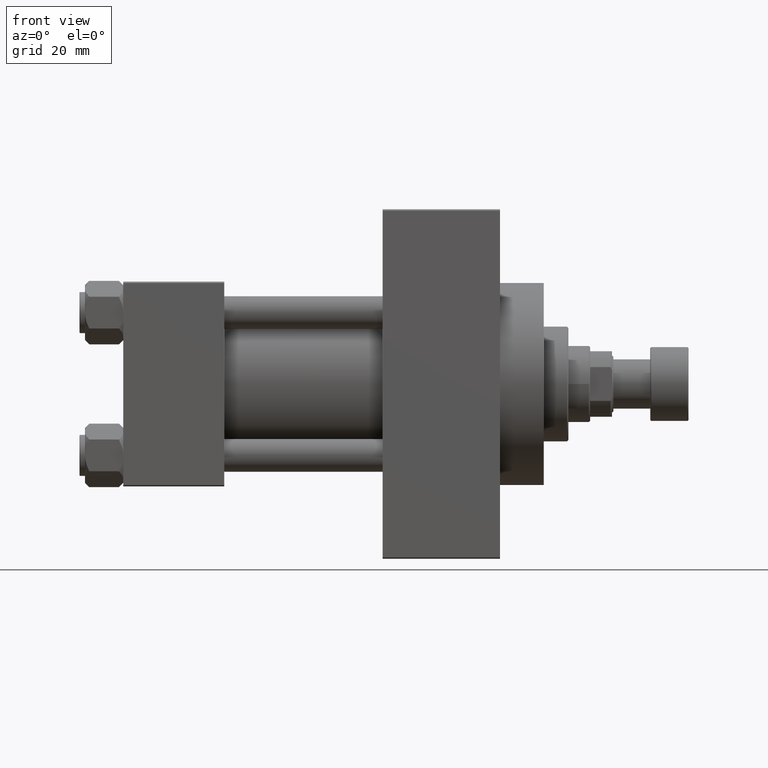
[diagram: clean part render]
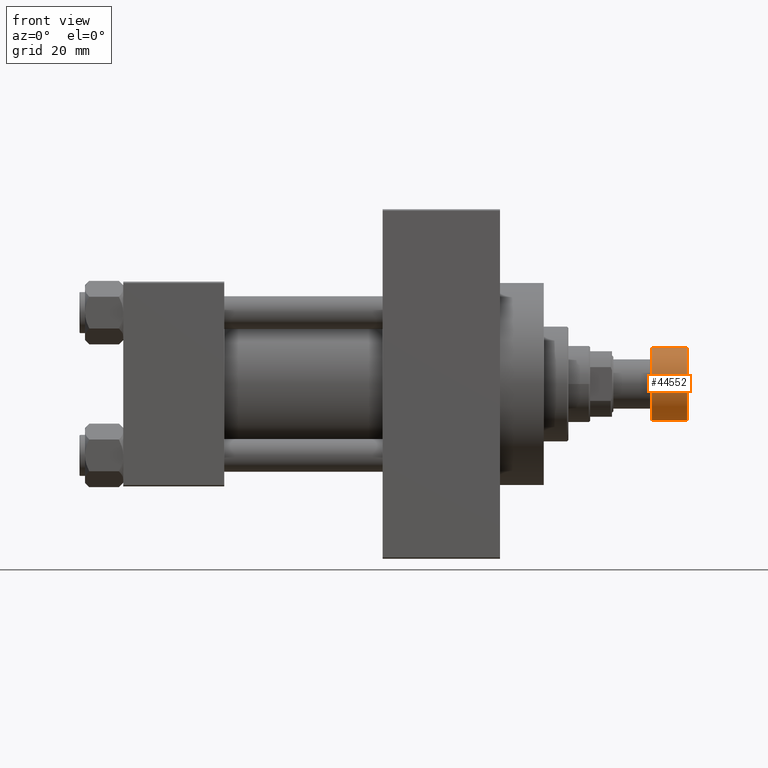
[diagram: same view with one face highlighted and labeled with its STEP entity id]
A machine part, front view. The second image highlights one B-rep face of the part: STEP entity #44552.
In plain terms, the highlighted cylindrical surface (partial cylindrical patch) has radius 13.5 mm, axis along (1, 0, 0).
Its self-contained STEP definition (entity closure, byte-faithful):
#2769 = FACE_OUTER_BOUND ( 'NONE', #18039, .T. ) ;
#5653 = DIRECTION ( 'NONE',  ( 1.000000000000000000, 0.000000000000000000, 0.000000000000000000 ) ) ;
#8016 = LINE ( 'NONE', #41985, #11107 ) ;
#9187 = CARTESIAN_POINT ( 'NONE',  ( 13.50000000000000000, 0.000000000000000000, -13.50000000000000000 ) ) ;
#10539 = CARTESIAN_POINT ( 'NONE',  ( 13.50000000000000000, 0.000000000000000000, -14.00000000000000000 ) ) ;
#11107 = VECTOR ( 'NONE', #44637, 1000.000000000000000 ) ;
#11570 = CARTESIAN_POINT ( 'NONE',  ( 0.000000000000000000, 0.000000000000000000, -0.5000000000000004441 ) ) ;
#15739 = EDGE_CURVE ( 'NONE', #31701, #20668, #22564, .T. ) ;
#15905 = DIRECTION ( 'NONE',  ( 1.000000000000000000, 0.000000000000000000, 0.000000000000000000 ) ) ;
#18039 = EDGE_LOOP ( 'NONE', ( #23529, #40806, #46605, #31694 ) ) ;
#19524 = DIRECTION ( 'NONE',  ( -0.000000000000000000, -0.000000000000000000, -1.000000000000000000 ) ) ;
#20668 = VERTEX_POINT ( 'NONE', #9187 ) ;
#22564 = CIRCLE ( 'NONE', #26419, 13.50000000000000000 ) ;
#23529 = ORIENTED_EDGE ( 'NONE', *, *, #37608, .F. ) ;
#24339 = AXIS2_PLACEMENT_3D ( 'NONE', #46870, #33596, #37925 ) ;
#26324 = CARTESIAN_POINT ( 'NONE',  ( 13.50000000000000000, 0.000000000000000000, -0.5000000000000004441 ) ) ;
#26419 = AXIS2_PLACEMENT_3D ( 'NONE', #37954, #34813, #5653 ) ;
#27826 = EDGE_CURVE ( 'NONE', #20668, #46958, #40167, .T. ) ;
#31694 = ORIENTED_EDGE ( 'NONE', *, *, #37995, .T. ) ;
#31701 = VERTEX_POINT ( 'NONE', #43607 ) ;
#32164 = CYLINDRICAL_SURFACE ( 'NONE', #24339, 13.50000000000000000 ) ;
#33596 = DIRECTION ( 'NONE',  ( 0.000000000000000000, 0.000000000000000000, 1.000000000000000000 ) ) ;
#34813 = DIRECTION ( 'NONE',  ( 0.000000000000000000, 0.000000000000000000, 1.000000000000000000 ) ) ;
#37608 = EDGE_CURVE ( 'NONE', #31701, #41167, #8016, .T. ) ;
#37925 = DIRECTION ( 'NONE',  ( 1.000000000000000000, 0.000000000000000000, 0.000000000000000000 ) ) ;
#37954 = CARTESIAN_POINT ( 'NONE',  ( 0.000000000000000000, 0.000000000000000000, -13.50000000000000000 ) ) ;
#37995 = EDGE_CURVE ( 'NONE', #46958, #41167, #44227, .T. ) ;
#39007 = VECTOR ( 'NONE', #39935, 1000.000000000000000 ) ;
#39935 = DIRECTION ( 'NONE',  ( 0.000000000000000000, 0.000000000000000000, 1.000000000000000000 ) ) ;
#40167 = LINE ( 'NONE', #10539, #39007 ) ;
#40806 = ORIENTED_EDGE ( 'NONE', *, *, #15739, .T. ) ;
#41167 = VERTEX_POINT ( 'NONE', #46837 ) ;
#41985 = CARTESIAN_POINT ( 'NONE',  ( -13.50000000000000000, 1.653273178848926867E-15, -14.00000000000000000 ) ) ;
#43607 = CARTESIAN_POINT ( 'NONE',  ( -13.50000000000000000, 1.653273178848926867E-15, -13.50000000000000000 ) ) ;
#44227 = CIRCLE ( 'NONE', #45790, 13.50000000000000000 ) ;
#44552 = ADVANCED_FACE ( 'NONE', ( #2769 ), #32164, .T. ) ;
#44637 = DIRECTION ( 'NONE',  ( 0.000000000000000000, 0.000000000000000000, 1.000000000000000000 ) ) ;
#45790 = AXIS2_PLACEMENT_3D ( 'NONE', #11570, #19524, #15905 ) ;
#46605 = ORIENTED_EDGE ( 'NONE', *, *, #27826, .T. ) ;
#46837 = CARTESIAN_POINT ( 'NONE',  ( -13.50000000000000000, 1.653273178848926867E-15, -0.5000000000000004441 ) ) ;
#46870 = CARTESIAN_POINT ( 'NONE',  ( 0.000000000000000000, 0.000000000000000000, -14.00000000000000000 ) ) ;
#46958 = VERTEX_POINT ( 'NONE', #26324 ) ;